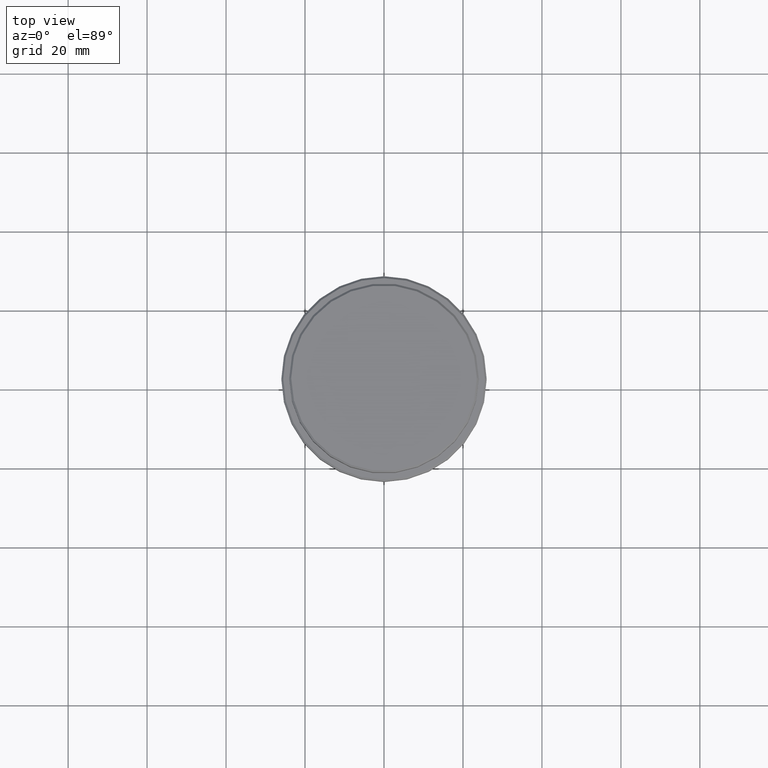
[diagram: clean part render]
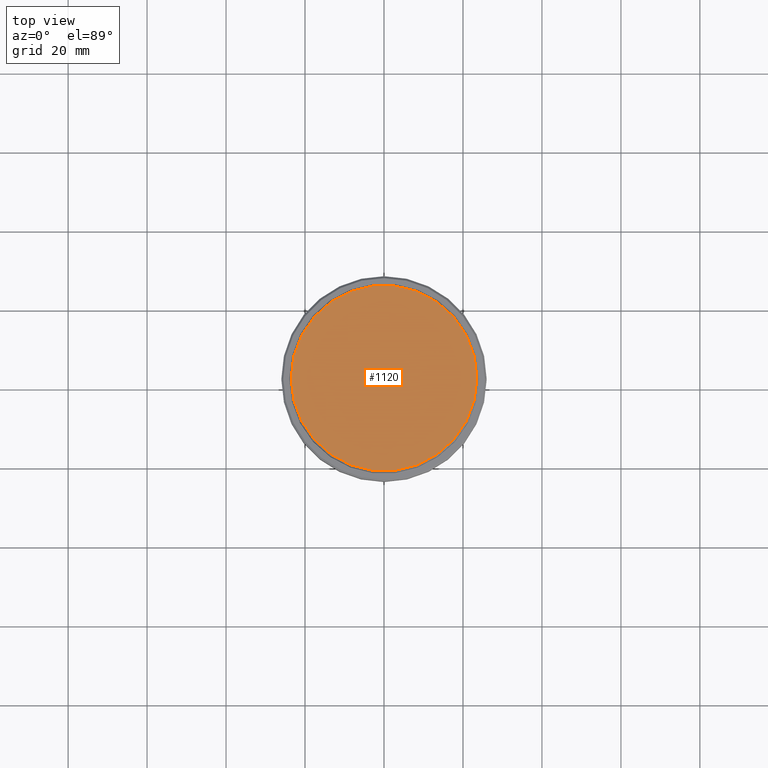
[diagram: same view with one face highlighted and labeled with its STEP entity id]
A machine part, top view. The second image highlights one B-rep face of the part: STEP entity #1120.
In plain terms, the highlighted planar face has unit normal (0, -0, 1).
Its self-contained STEP definition (entity closure, byte-faithful):
#16 = ORIENTED_EDGE ( 'NONE', *, *, #1091, .T. ) ;
#98 = DIRECTION ( 'NONE',  ( -0.000000000000000000, -0.000000000000000000, 1.000000000000000000 ) ) ;
#175 = DIRECTION ( 'NONE',  ( 0.000000000000000000, -0.000000000000000000, 1.000000000000000000 ) ) ;
#215 = CARTESIAN_POINT ( 'NONE',  ( 0.000000000000000000, 0.000000000000000000, 0.000000000000000000 ) ) ;
#375 = DIRECTION ( 'NONE',  ( 1.000000000000000000, 0.000000000000000000, 0.000000000000000000 ) ) ;
#456 = CIRCLE ( 'NONE', #1199, 23.49999999999999289 ) ;
#533 = DIRECTION ( 'NONE',  ( 1.000000000000000000, 0.000000000000000000, 0.000000000000000000 ) ) ;
#537 = CIRCLE ( 'NONE', #1400, 23.49999999999999289 ) ;
#556 = DIRECTION ( 'NONE',  ( -0.000000000000000000, -0.000000000000000000, 1.000000000000000000 ) ) ;
#675 = EDGE_CURVE ( 'NONE', #864, #1367, #537, .T. ) ;
#707 = CARTESIAN_POINT ( 'NONE',  ( 0.000000000000000000, 0.000000000000000000, 0.000000000000000000 ) ) ;
#763 = DIRECTION ( 'NONE',  ( 1.000000000000000000, 0.000000000000000000, 0.000000000000000000 ) ) ;
#864 = VERTEX_POINT ( 'NONE', #1390 ) ;
#970 = AXIS2_PLACEMENT_3D ( 'NONE', #707, #175, #375 ) ;
#1013 = FACE_OUTER_BOUND ( 'NONE', #1346, .T. ) ;
#1091 = EDGE_CURVE ( 'NONE', #1367, #864, #456, .T. ) ;
#1115 = PLANE ( 'NONE',  #970 ) ;
#1120 = ADVANCED_FACE ( 'NONE', ( #1013 ), #1115, .T. ) ;
#1182 = ORIENTED_EDGE ( 'NONE', *, *, #675, .T. ) ;
#1199 = AXIS2_PLACEMENT_3D ( 'NONE', #1209, #556, #763 ) ;
#1209 = CARTESIAN_POINT ( 'NONE',  ( 0.000000000000000000, 0.000000000000000000, 0.000000000000000000 ) ) ;
#1346 = EDGE_LOOP ( 'NONE', ( #1182, #16 ) ) ;
#1367 = VERTEX_POINT ( 'NONE', #1395 ) ;
#1390 = CARTESIAN_POINT ( 'NONE',  ( -23.49999999999999289, 0.000000000000000000, 0.000000000000000000 ) ) ;
#1395 = CARTESIAN_POINT ( 'NONE',  ( 23.49999999999999289, 2.908536147974962924E-15, 0.000000000000000000 ) ) ;
#1400 = AXIS2_PLACEMENT_3D ( 'NONE', #215, #98, #533 ) ;